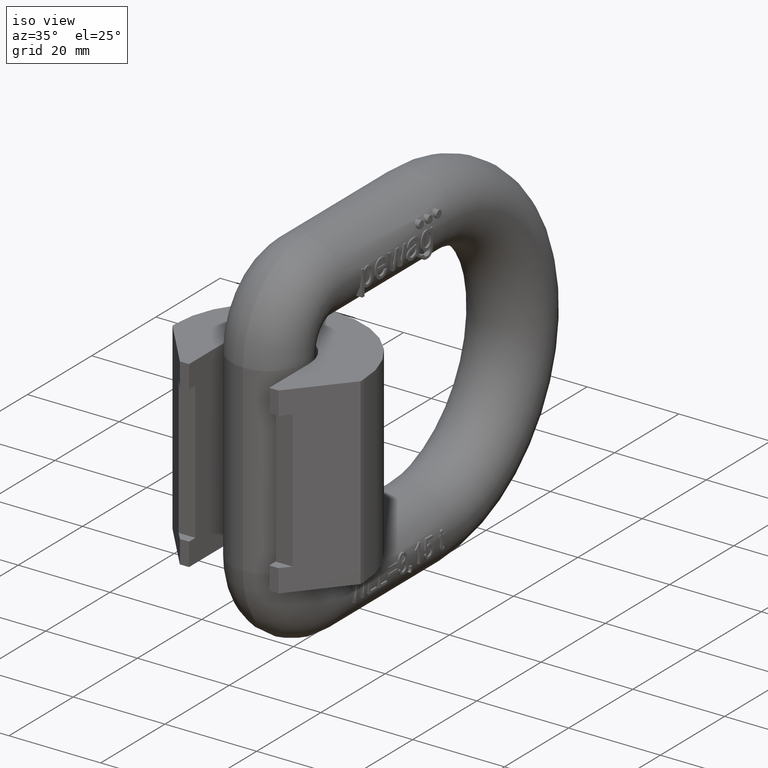
[diagram: clean part render]
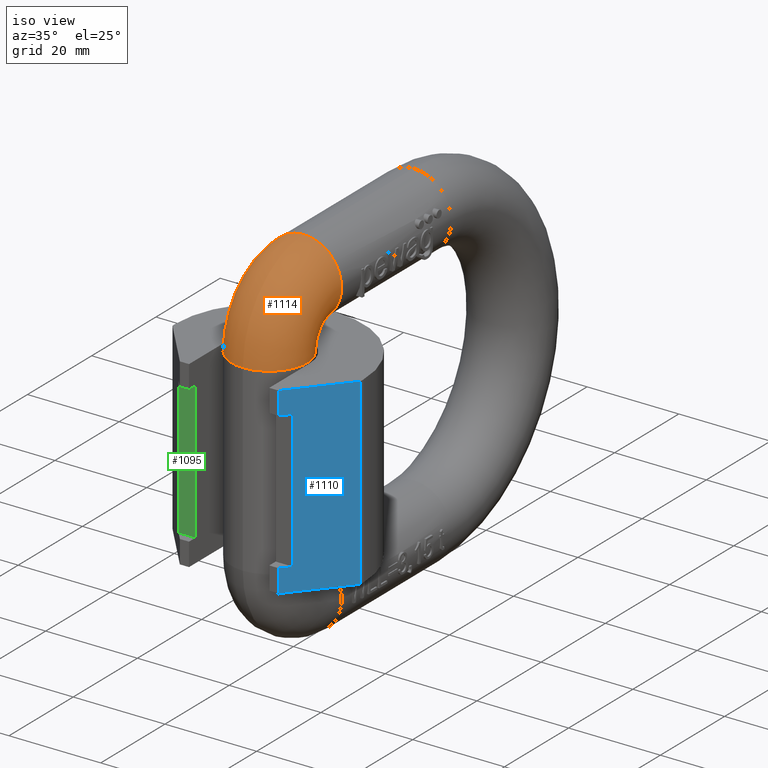
[diagram: same view with three faces highlighted in distinct colors, each labeled with its STEP entity id]
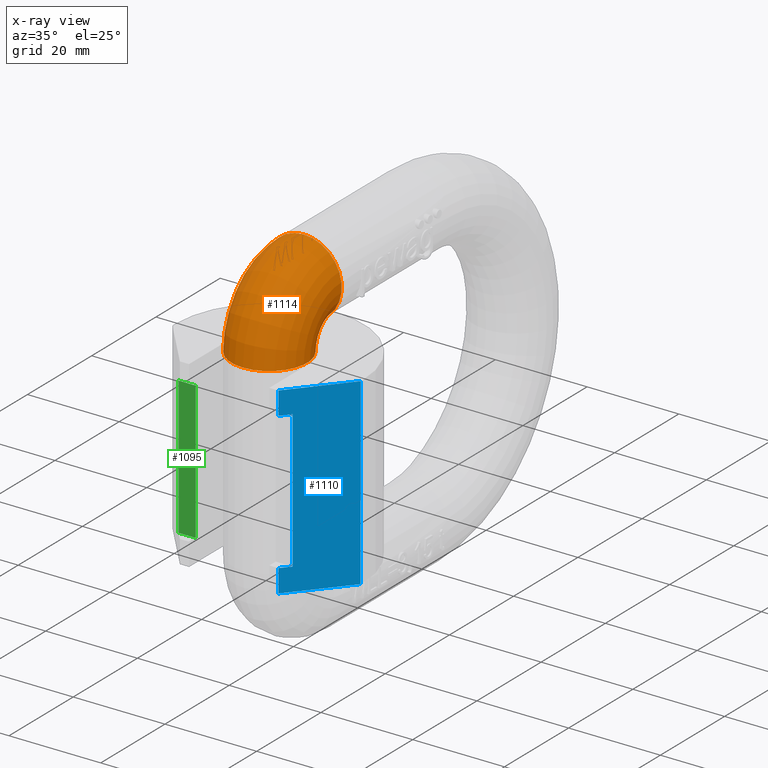
[diagram: x-ray of the same camera — body ghosted, the three highlighted faces saturated]
A machine part, iso view with three faces highlighted in distinct colors.
The next image is the same camera in x-ray (body ghosted, the three faces saturated) — at least one of them is partly hidden behind the body in this view.
Their STEP definitions:

[orange] entity #1114 — the highlighted toroidal blend (fillet) surface has major radius 10.75 mm and minor (blend) radius 8.25 mm.
#202=TOROIDAL_SURFACE('',#8140,10.75,8.25);
#1017=FACE_BOUND('',#2222,.T.);
#1018=FACE_BOUND('',#2223,.T.);
#1114=ADVANCED_FACE('',(#1017,#1018),#202,.T.);
#2222=EDGE_LOOP('',(#3152));
#2223=EDGE_LOOP('',(#3153));
#2677=CIRCLE('',#8085,8.25);
#2702=CIRCLE('',#8139,8.25);
#3152=ORIENTED_EDGE('',*,*,#5962,.F.);
#3153=ORIENTED_EDGE('',*,*,#6128,.T.);
#5182=VERTEX_POINT('',#11353);
#5348=VERTEX_POINT('',#12815);
#5962=EDGE_CURVE('',#5182,#5182,#2677,.T.);
#6128=EDGE_CURVE('',#5348,#5348,#2702,.T.);
#8085=AXIS2_PLACEMENT_3D('',#11352,#8622,#8623);
#8139=AXIS2_PLACEMENT_3D('',#12814,#8765,#8766);
#8140=AXIS2_PLACEMENT_3D('',#12816,#8767,#8768);
#8622=DIRECTION('',(0.,1.,4.14844131227808E-15));
#8623=DIRECTION('',(0.,-4.20539024479226E-15,1.));
#8765=DIRECTION('',(0.,-3.64311976247065E-15,1.));
#8766=DIRECTION('',(0.,-1.,-3.78485122031303E-15));
#8767=DIRECTION('',(-1.,0.,0.));
#8768=DIRECTION('',(0.,0.,1.));
#11352=CARTESIAN_POINT('',(0.,23.25,30.75));
#11353=CARTESIAN_POINT('',(0.,23.2499999999999,39.));
#12814=CARTESIAN_POINT('',(0.,12.5,20.));
#12815=CARTESIAN_POINT('',(0.,4.25,19.9999999999999));
#12816=CARTESIAN_POINT('',(0.,23.25,20.));

[blue] entity #1110 — the highlighted planar face has unit normal (0.766, -0.6428, 0).
#1110=ADVANCED_FACE('',(#1770),#1538,.T.);
#1538=PLANE('',#8029);
#1770=FACE_OUTER_BOUND('',#2180,.T.);
#2180=EDGE_LOOP('',(#2804,#2805,#2806,#2807,#2808,#2809,#2810,#2811));
#2804=ORIENTED_EDGE('',*,*,#5748,.T.);
#2805=ORIENTED_EDGE('',*,*,#5777,.T.);
#2806=ORIENTED_EDGE('',*,*,#5783,.T.);
#2807=ORIENTED_EDGE('',*,*,#5786,.F.);
#2808=ORIENTED_EDGE('',*,*,#5780,.F.);
#2809=ORIENTED_EDGE('',*,*,#5774,.T.);
#2810=ORIENTED_EDGE('',*,*,#5757,.F.);
#2811=ORIENTED_EDGE('',*,*,#5790,.F.);
#4986=VERTEX_POINT('',#9792);
#4987=VERTEX_POINT('',#9794);
#4995=VERTEX_POINT('',#9811);
#4996=VERTEX_POINT('',#9813);
#5008=VERTEX_POINT('',#9847);
#5010=VERTEX_POINT('',#9853);
#5012=VERTEX_POINT('',#9859);
#5014=VERTEX_POINT('',#9865);
#5748=EDGE_CURVE('',#4987,#4986,#6881,.T.);
#5757=EDGE_CURVE('',#4995,#4996,#6888,.T.);
#5774=EDGE_CURVE('',#5008,#4996,#6904,.T.);
#5777=EDGE_CURVE('',#4986,#5010,#6907,.T.);
#5780=EDGE_CURVE('',#5008,#5012,#6910,.T.);
#5783=EDGE_CURVE('',#5010,#5014,#6913,.T.);
#5786=EDGE_CURVE('',#5012,#5014,#6916,.T.);
#5790=EDGE_CURVE('',#4987,#4995,#6920,.T.);
#6881=LINE('',#9793,#7357);
#6888=LINE('',#9812,#7364);
#6904=LINE('',#9846,#7380);
#6907=LINE('',#9852,#7383);
#6910=LINE('',#9858,#7386);
#6913=LINE('',#9864,#7389);
#6916=LINE('',#9870,#7392);
#6920=LINE('',#9876,#7396);
#7357=VECTOR('',#8388,1.);
#7364=VECTOR('',#8401,1.);
#7380=VECTOR('',#8429,1.);
#7383=VECTOR('',#8434,1.);
#7386=VECTOR('',#8439,1.);
#7389=VECTOR('',#8444,1.);
#7392=VECTOR('',#8449,1.);
#7396=VECTOR('',#8457,1.);
#8029=AXIS2_PLACEMENT_3D('',#9888,#8475,#8476);
#8388=DIRECTION('',(-0.64278760968654,-0.766044443118978,0.));
#8401=DIRECTION('',(-0.64278760968654,-0.766044443118978,0.));
#8429=DIRECTION('',(0.,0.,-1.));
#8434=DIRECTION('',(0.,0.,-1.));
#8439=DIRECTION('',(0.64278760968654,0.766044443118978,0.));
#8444=DIRECTION('',(0.64278760968654,0.766044443118978,0.));
#8449=DIRECTION('',(0.,0.,1.));
#8457=DIRECTION('',(0.,0.,-1.));
#8475=DIRECTION('',(0.766044443118978,-0.64278760968654,0.));
#8476=DIRECTION('',(0.64278760968654,0.766044443118978,0.));
#9792=CARTESIAN_POINT('',(10.75,0.,20.));
#9793=CARTESIAN_POINT('',(12.463407411286,2.04195943797769,20.));
#9794=CARTESIAN_POINT('',(20.5,11.6195975277935,20.));
#9811=CARTESIAN_POINT('',(20.5,11.6195975277935,-20.));
#9812=CARTESIAN_POINT('',(12.463407411286,2.04195943797769,-20.));
#9813=CARTESIAN_POINT('',(10.75,0.,-20.));
#9846=CARTESIAN_POINT('',(10.75,0.,22.0000275));
#9847=CARTESIAN_POINT('',(10.75,0.,-15.));
#9852=CARTESIAN_POINT('',(10.75,0.,22.0000275));
#9853=CARTESIAN_POINT('',(10.75,0.,15.));
#9858=CARTESIAN_POINT('',(6.30835895495975,-5.29334167244062,-15.));
#9859=CARTESIAN_POINT('',(12.4281992623546,2.,-15.));
#9864=CARTESIAN_POINT('',(6.30835895495975,-5.29334167244062,15.));
#9865=CARTESIAN_POINT('',(12.4281992623546,2.,15.));
#9870=CARTESIAN_POINT('',(12.4281992623546,2.,15.));
#9876=CARTESIAN_POINT('',(20.5,11.6195975277935,22.0000275));
#9888=CARTESIAN_POINT('',(20.5,11.6195975277935,22.0000275));

[green] entity #1095 — the highlighted planar face has unit normal (0, -1, 0).
#1095=ADVANCED_FACE('',(#1755),#1525,.T.);
#1525=PLANE('',#8014);
#1755=FACE_OUTER_BOUND('',#2165,.T.);
#2165=EDGE_LOOP('',(#2736,#2737,#2738,#2739));
#2736=ORIENTED_EDGE('',*,*,#5764,.F.);
#2737=ORIENTED_EDGE('',*,*,#5765,.T.);
#2738=ORIENTED_EDGE('',*,*,#5766,.T.);
#2739=ORIENTED_EDGE('',*,*,#5767,.T.);
#5000=VERTEX_POINT('',#9826);
#5001=VERTEX_POINT('',#9827);
#5002=VERTEX_POINT('',#9829);
#5003=VERTEX_POINT('',#9831);
#5764=EDGE_CURVE('',#5000,#5001,#6894,.T.);
#5765=EDGE_CURVE('',#5000,#5002,#6895,.T.);
#5766=EDGE_CURVE('',#5002,#5003,#6896,.T.);
#5767=EDGE_CURVE('',#5003,#5001,#6897,.T.);
#6894=LINE('',#9825,#7370);
#6895=LINE('',#9828,#7371);
#6896=LINE('',#9830,#7372);
#6897=LINE('',#9832,#7373);
#7370=VECTOR('',#8413,1.);
#7371=VECTOR('',#8414,1.);
#7372=VECTOR('',#8415,1.);
#7373=VECTOR('',#8416,1.);
#8014=AXIS2_PLACEMENT_3D('',#9833,#8417,#8418);
#8413=DIRECTION('',(1.,1.16353403876493E-16,0.));
#8414=DIRECTION('',(0.,0.,-1.));
#8415=DIRECTION('',(1.,1.16353403876493E-16,0.));
#8416=DIRECTION('',(0.,0.,1.));
#8417=DIRECTION('',(1.16353403876493E-16,-1.,0.));
#8418=DIRECTION('',(1.,1.16226472890446E-16,0.));
#9825=CARTESIAN_POINT('',(20.5,2.,15.));
#9826=CARTESIAN_POINT('',(-12.4281992623546,2.,15.));
#9827=CARTESIAN_POINT('',(-8.75,2.,15.));
#9828=CARTESIAN_POINT('',(-12.4281992623546,2.,15.));
#9829=CARTESIAN_POINT('',(-12.4281992623545,1.99999999999999,-15.));
#9830=CARTESIAN_POINT('',(20.5,2.,-15.));
#9831=CARTESIAN_POINT('',(-8.75,2.,-15.));
#9832=CARTESIAN_POINT('',(-8.75,2.,20.));
#9833=CARTESIAN_POINT('',(20.5,2.,15.));